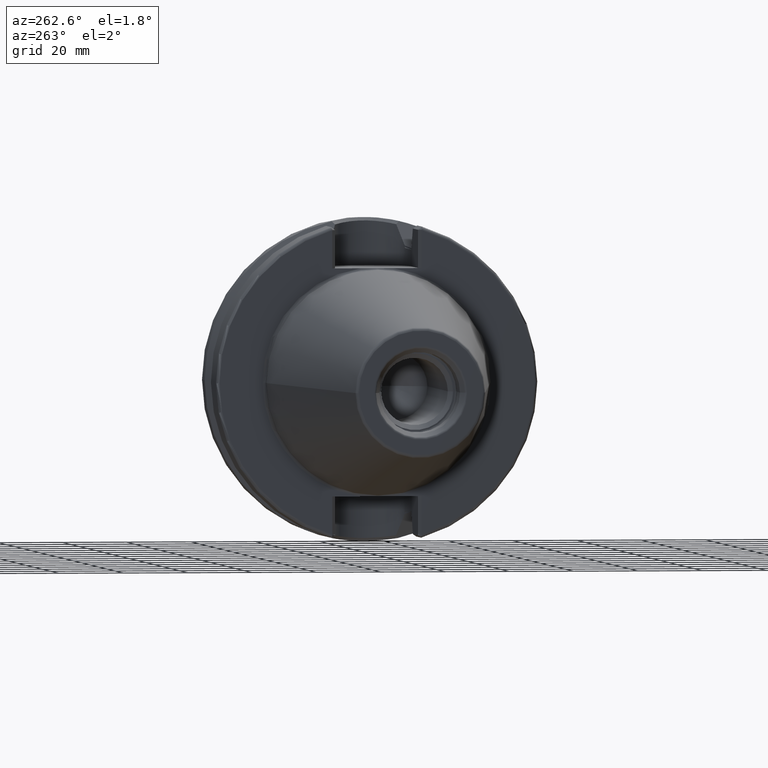
[diagram: clean part render]
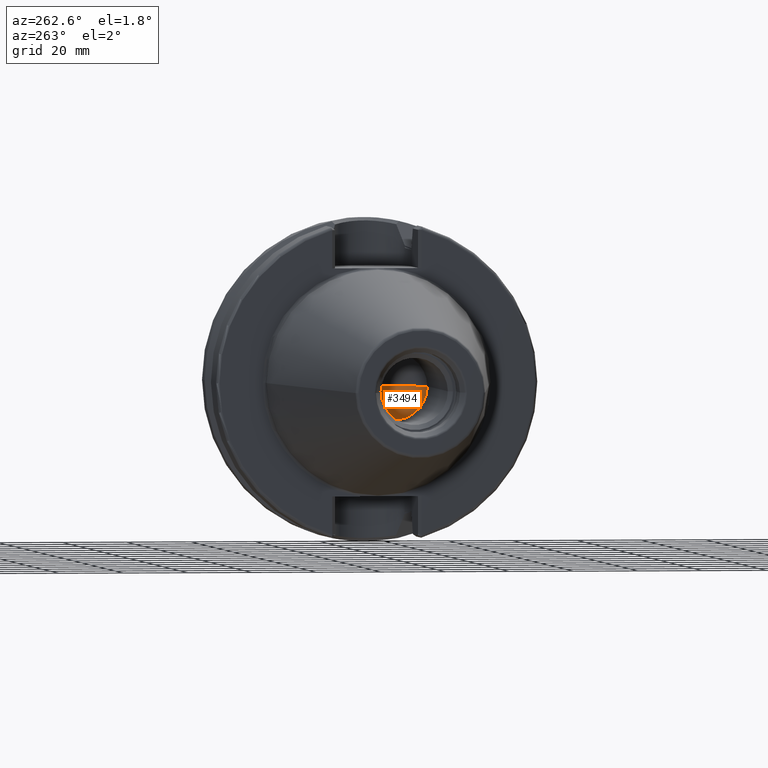
[diagram: same view with one face highlighted and labeled with its STEP entity id]
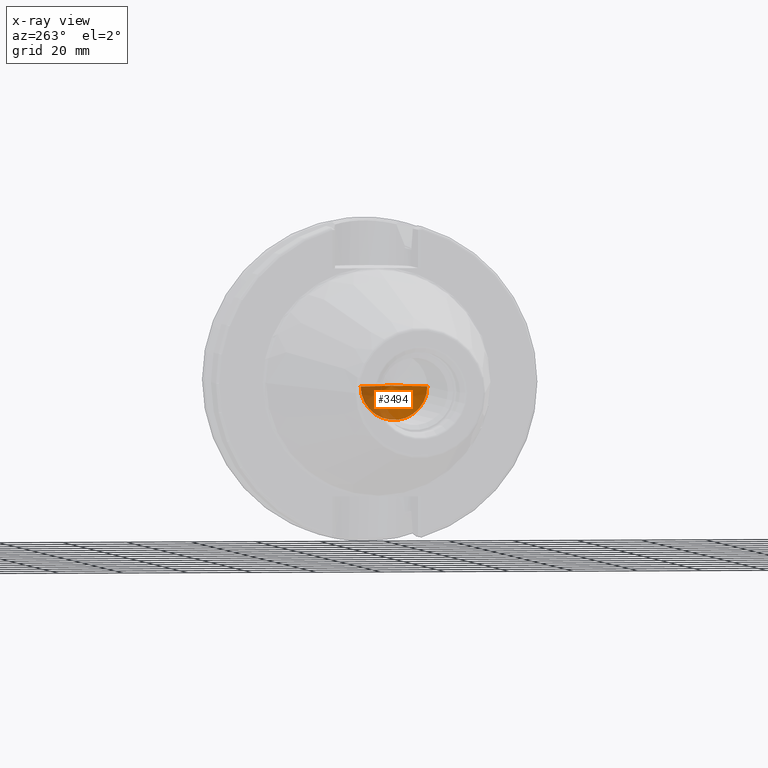
[diagram: x-ray of the same camera — body ghosted, the highlighted face saturated]
A machine part, auxiliary view. The second image highlights one B-rep face of the part: STEP entity #3494.
The next image is the same camera in x-ray: the body ghosted, the highlighted face saturated — about 33% of this face is hidden behind the body in this view.
In plain terms, the highlighted conical surface has half-angle 59 deg.
Its self-contained STEP definition (entity closure, byte-faithful):
#1280=CARTESIAN_POINT('',(-3.78E1,0.E0,0.E0));
#1281=DIRECTION('',(-1.E0,0.E0,0.E0));
#1282=DIRECTION('',(0.E0,1.E0,0.E0));
#1283=AXIS2_PLACEMENT_3D('',#1280,#1281,#1282);
#1294=DIRECTION('',(-5.150380749101E-1,8.571673007021E-1,0.E0));
#1295=VECTOR('',#1294,1.210382149611E1);
#1296=CARTESIAN_POINT('',(-3.156607107759E1,0.E0,0.E0));
#1297=LINE('',#1296,#1295);
#1298=DIRECTION('',(-5.150380749101E-1,-8.571673007021E-1,0.E0));
#1299=VECTOR('',#1298,1.210382149611E1);
#1300=CARTESIAN_POINT('',(-3.156607107759E1,0.E0,0.E0));
#1301=LINE('',#1300,#1299);
#1386=CARTESIAN_POINT('',(-3.156607107759E1,0.E0,0.E0));
#1387=CARTESIAN_POINT('',(-3.78E1,1.0375E1,0.E0));
#1388=VERTEX_POINT('',#1386);
#1389=VERTEX_POINT('',#1387);
#1410=CARTESIAN_POINT('',(-3.78E1,-1.0375E1,0.E0));
#1411=VERTEX_POINT('',#1410);
#3484=CARTESIAN_POINT('',(-3.468303553879E1,0.E0,0.E0));
#3485=DIRECTION('',(-1.E0,0.E0,0.E0));
#3486=DIRECTION('',(0.E0,1.E0,0.E0));
#3487=AXIS2_PLACEMENT_3D('',#3484,#3485,#3486);
#3488=CONICAL_SURFACE('',#3487,5.1875E0,5.9E1);
#3489=ORIENTED_EDGE('',*,*,#3476,.F.);
#3490=ORIENTED_EDGE('',*,*,#3479,.T.);
#3491=ORIENTED_EDGE('',*,*,#3450,.F.);
#3492=EDGE_LOOP('',(#3489,#3490,#3491));
#3493=FACE_OUTER_BOUND('',#3492,.F.);
#3494=ADVANCED_FACE('',(#3493),#3488,.F.);
#1284=CIRCLE('',#1283,1.0375E1);
#3450=EDGE_CURVE('',#1389,#1411,#1284,.T.);
#3476=EDGE_CURVE('',#1388,#1389,#1297,.T.);
#3479=EDGE_CURVE('',#1388,#1411,#1301,.T.);